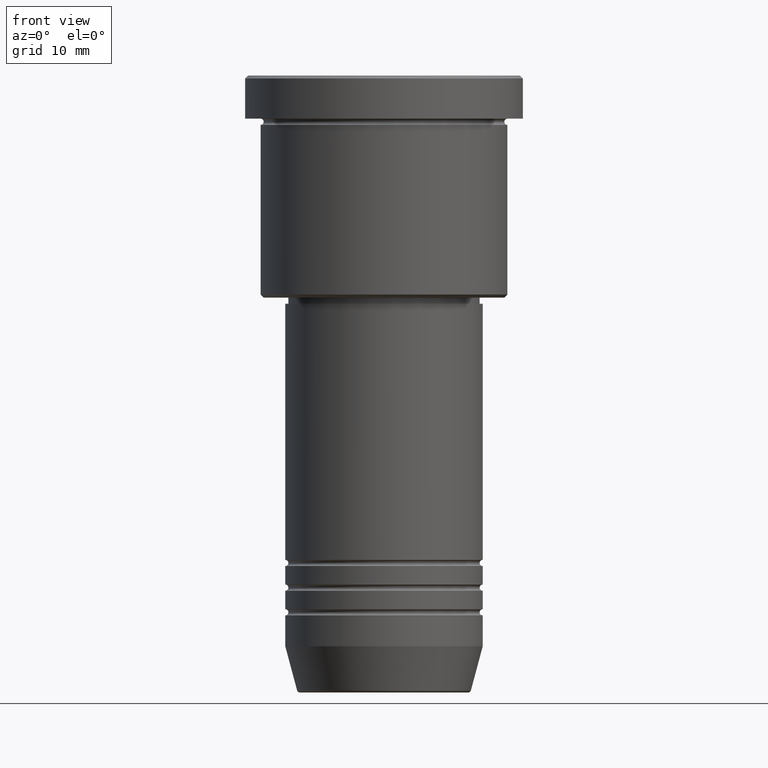
[diagram: clean part render]
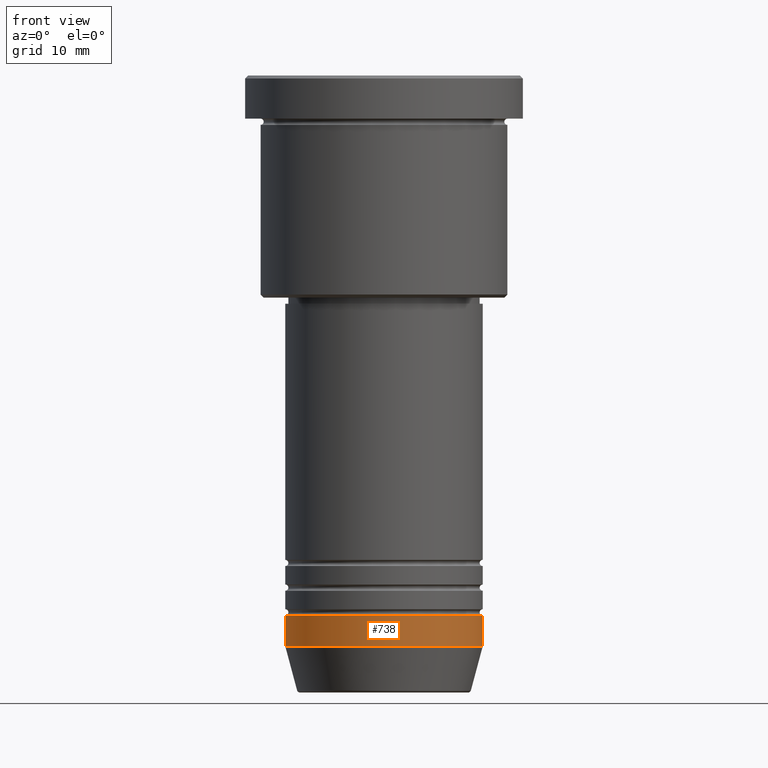
[diagram: same view with one face highlighted and labeled with its STEP entity id]
A machine part, front view. The second image highlights one B-rep face of the part: STEP entity #738.
In plain terms, the highlighted cylindrical surface (partial cylindrical patch) has radius 16 mm, axis along (-0, -0, 1).
Its self-contained STEP definition (entity closure, byte-faithful):
#36 = CARTESIAN_POINT ( 'NONE',  ( 0.000000000000000000, 0.000000000000000000, 0.000000000000000000 ) ) ;
#113 = CIRCLE ( 'NONE', #349, 16.00000000000000000 ) ;
#121 = DIRECTION ( 'NONE',  ( 1.000000000000000000, 0.000000000000000000, 0.000000000000000000 ) ) ;
#164 = EDGE_CURVE ( 'NONE', #750, #554, #1153, .T. ) ;
#169 = AXIS2_PLACEMENT_3D ( 'NONE', #36, #844, #1136 ) ;
#181 = EDGE_CURVE ( 'NONE', #554, #595, #1074, .T. ) ;
#211 = ORIENTED_EDGE ( 'NONE', *, *, #164, .F. ) ;
#273 = LINE ( 'NONE', #815, #386 ) ;
#292 = DIRECTION ( 'NONE',  ( -0.000000000000000000, -0.000000000000000000, 1.000000000000000000 ) ) ;
#297 = CARTESIAN_POINT ( 'NONE',  ( -16.00000000000000000, 1.959434878635765131E-15, -92.50000000000000000 ) ) ;
#324 = ORIENTED_EDGE ( 'NONE', *, *, #552, .T. ) ;
#349 = AXIS2_PLACEMENT_3D ( 'NONE', #797, #632, #466 ) ;
#367 = ORIENTED_EDGE ( 'NONE', *, *, #181, .F. ) ;
#386 = VECTOR ( 'NONE', #292, 1000.000000000000000 ) ;
#397 = DIRECTION ( 'NONE',  ( -0.000000000000000000, -0.000000000000000000, 1.000000000000000000 ) ) ;
#399 = ORIENTED_EDGE ( 'NONE', *, *, #603, .T. ) ;
#443 = CARTESIAN_POINT ( 'NONE',  ( -16.00000000000000000, 1.959434878635765131E-15, -87.50000000000000000 ) ) ;
#466 = DIRECTION ( 'NONE',  ( 1.000000000000000000, 0.000000000000000000, 0.000000000000000000 ) ) ;
#498 = CYLINDRICAL_SURFACE ( 'NONE', #169, 16.00000000000000000 ) ;
#515 = VERTEX_POINT ( 'NONE', #1058 ) ;
#552 = EDGE_CURVE ( 'NONE', #750, #515, #113, .T. ) ;
#554 = VERTEX_POINT ( 'NONE', #443 ) ;
#575 = FACE_OUTER_BOUND ( 'NONE', #1062, .T. ) ;
#595 = VERTEX_POINT ( 'NONE', #737 ) ;
#603 = EDGE_CURVE ( 'NONE', #515, #595, #273, .T. ) ;
#605 = DIRECTION ( 'NONE',  ( -0.000000000000000000, -0.000000000000000000, 1.000000000000000000 ) ) ;
#632 = DIRECTION ( 'NONE',  ( -0.000000000000000000, -0.000000000000000000, 1.000000000000000000 ) ) ;
#686 = CARTESIAN_POINT ( 'NONE',  ( -16.00000000000000000, 1.959434878635765131E-15, 0.000000000000000000 ) ) ;
#737 = CARTESIAN_POINT ( 'NONE',  ( 16.00000000000000000, 0.000000000000000000, -87.50000000000000000 ) ) ;
#738 = ADVANCED_FACE ( 'NONE', ( #575 ), #498, .T. ) ;
#750 = VERTEX_POINT ( 'NONE', #297 ) ;
#797 = CARTESIAN_POINT ( 'NONE',  ( 0.000000000000000000, 0.000000000000000000, -92.50000000000000000 ) ) ;
#815 = CARTESIAN_POINT ( 'NONE',  ( 16.00000000000000000, 0.000000000000000000, 0.000000000000000000 ) ) ;
#832 = AXIS2_PLACEMENT_3D ( 'NONE', #935, #397, #121 ) ;
#844 = DIRECTION ( 'NONE',  ( -0.000000000000000000, -0.000000000000000000, 1.000000000000000000 ) ) ;
#935 = CARTESIAN_POINT ( 'NONE',  ( 0.000000000000000000, 0.000000000000000000, -87.50000000000000000 ) ) ;
#1058 = CARTESIAN_POINT ( 'NONE',  ( 16.00000000000000000, 0.000000000000000000, -92.50000000000000000 ) ) ;
#1062 = EDGE_LOOP ( 'NONE', ( #211, #324, #399, #367 ) ) ;
#1074 = CIRCLE ( 'NONE', #832, 16.00000000000000000 ) ;
#1076 = VECTOR ( 'NONE', #605, 1000.000000000000000 ) ;
#1136 = DIRECTION ( 'NONE',  ( 1.000000000000000000, 0.000000000000000000, 0.000000000000000000 ) ) ;
#1153 = LINE ( 'NONE', #686, #1076 ) ;